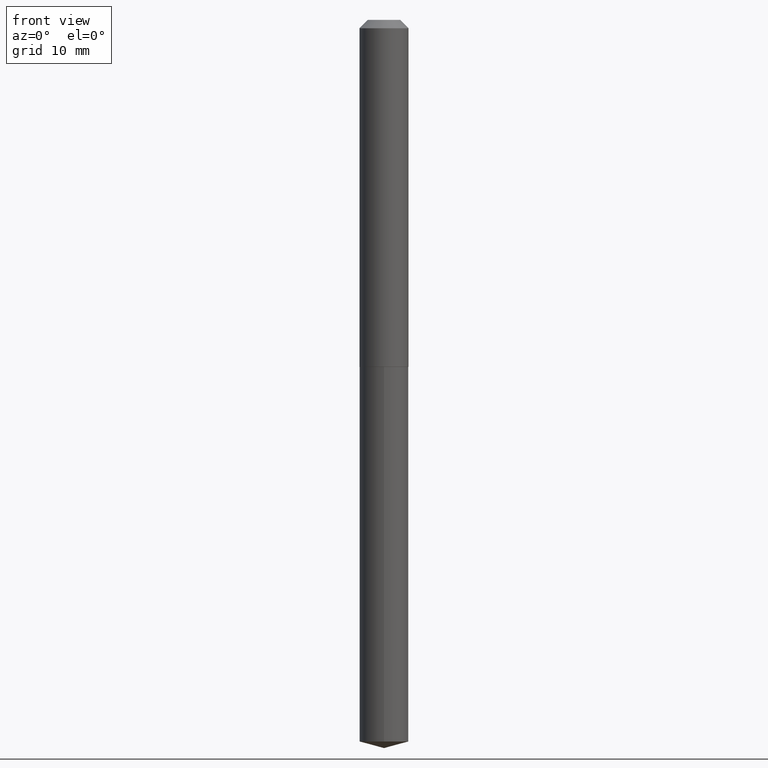
[diagram: clean part render]
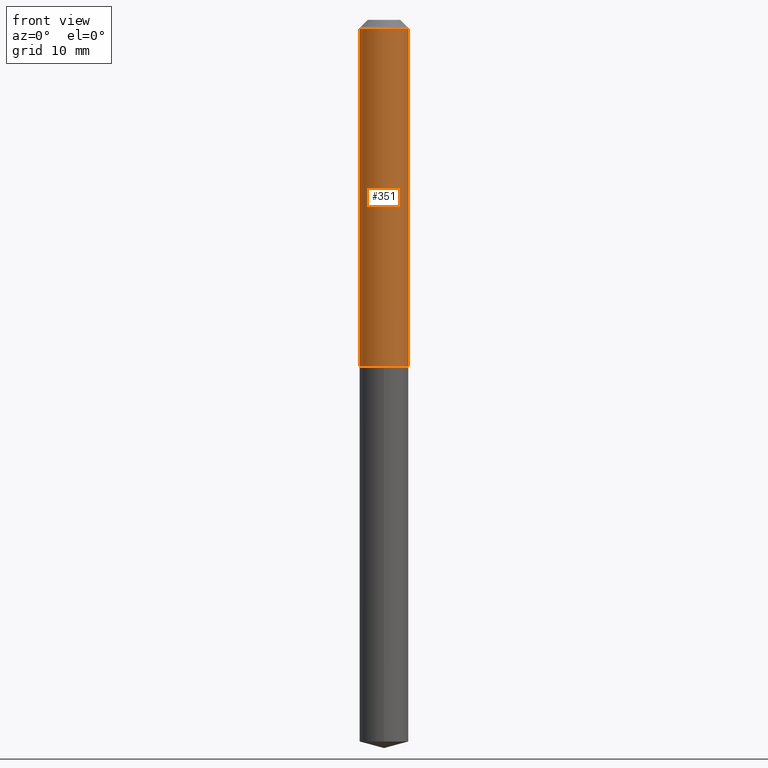
[diagram: same view with one face highlighted and labeled with its STEP entity id]
A machine part, front view. The second image highlights one B-rep face of the part: STEP entity #351.
In plain terms, the highlighted cylindrical surface (edge-blend (fillet) strip) has radius 2.3495 mm, axis along (-0, 0, 1).
Its self-contained STEP definition (entity closure, byte-faithful):
#15 = CARTESIAN_POINT ( 'NONE',  ( 0.09249999999999999889, -7.550328395248286925E-16, -0.03125000000000019429 ) ) ;
#30 = CARTESIAN_POINT ( 'NONE',  ( 0.000000000000000000, 0.000000000000000000, 0.000000000000000000 ) ) ;
#34 = DIRECTION ( 'NONE',  ( -2.445468806185136597E-29, 3.491481338843145583E-15, 1.000000000000000000 ) ) ;
#64 = LINE ( 'NONE', #93, #185 ) ;
#72 = CARTESIAN_POINT ( 'NONE',  ( 0.09250000000000017930, -5.218018860901080849E-15, -1.309500000000000108 ) ) ;
#73 = CARTESIAN_POINT ( 'NONE',  ( 0.09250000000000008216, -6.459240476859802821E-16, 4.510463517611244952E-30 ) ) ;
#80 = DIRECTION ( 'NONE',  ( -2.445468806185136597E-29, 3.491481338843145583E-15, 1.000000000000000000 ) ) ;
#90 = CYLINDRICAL_SURFACE ( 'NONE', #332, 0.09250000000000008216 ) ;
#91 = VECTOR ( 'NONE', #208, 39.37007874015748143 ) ;
#93 = CARTESIAN_POINT ( 'NONE',  ( -0.09250000000000008216, 6.572520305780932557E-16, -4.550014958485792374E-30 ) ) ;
#102 = CARTESIAN_POINT ( 'NONE',  ( 7.642090019328598283E-31, -1.091087918388489651E-16, -0.03125000000000019429 ) ) ;
#110 = CIRCLE ( 'NONE', #373, 0.09250000000000017930 ) ;
#136 = DIRECTION ( 'NONE',  ( 1.000000000000000000, -6.982962677686272233E-15, 0.000000000000000000 ) ) ;
#143 = CARTESIAN_POINT ( 'NONE',  ( -0.09250000000000017930, -3.914842782637005634E-15, -1.309500000000000108 ) ) ;
#146 = ORIENTED_EDGE ( 'NONE', *, *, #345, .F. ) ;
#149 = ORIENTED_EDGE ( 'NONE', *, *, #181, .T. ) ;
#181 = EDGE_CURVE ( 'NONE', #273, #384, #110, .T. ) ;
#185 = VECTOR ( 'NONE', #386, 39.37007874015748143 ) ;
#193 = DIRECTION ( 'NONE',  ( 1.000000000000000000, -6.982962677686267499E-15, 4.876176775795936353E-29 ) ) ;
#200 = EDGE_CURVE ( 'NONE', #363, #209, #235, .T. ) ;
#205 = CARTESIAN_POINT ( 'NONE',  ( 3.202341401699436656E-29, -4.572094813215099285E-15, -1.309500000000000108 ) ) ;
#208 = DIRECTION ( 'NONE',  ( -2.445468806185136877E-29, 3.491481338843145188E-15, 1.000000000000000000 ) ) ;
#209 = VERTEX_POINT ( 'NONE', #15 ) ;
#215 = EDGE_CURVE ( 'NONE', #384, #209, #350, .T. ) ;
#235 = CIRCLE ( 'NONE', #358, 0.09249999999999999889 ) ;
#254 = DIRECTION ( 'NONE',  ( 1.000000000000000000, -6.982962677686266711E-15, 0.000000000000000000 ) ) ;
#265 = ORIENTED_EDGE ( 'NONE', *, *, #215, .T. ) ;
#273 = VERTEX_POINT ( 'NONE', #143 ) ;
#307 = CARTESIAN_POINT ( 'NONE',  ( -0.09249999999999999889, -1.683349771948880148E-15, -0.03125000000000019429 ) ) ;
#308 = ORIENTED_EDGE ( 'NONE', *, *, #200, .F. ) ;
#321 = DIRECTION ( 'NONE',  ( -2.445468806185136597E-29, 3.491481338843145583E-15, 1.000000000000000000 ) ) ;
#332 = AXIS2_PLACEMENT_3D ( 'NONE', #30, #34, #193 ) ;
#338 = FACE_OUTER_BOUND ( 'NONE', #368, .T. ) ;
#345 = EDGE_CURVE ( 'NONE', #273, #363, #64, .T. ) ;
#350 = LINE ( 'NONE', #73, #91 ) ;
#351 = ADVANCED_FACE ( 'NONE', ( #338 ), #90, .T. ) ;
#358 = AXIS2_PLACEMENT_3D ( 'NONE', #102, #321, #254 ) ;
#363 = VERTEX_POINT ( 'NONE', #307 ) ;
#368 = EDGE_LOOP ( 'NONE', ( #146, #149, #265, #308 ) ) ;
#373 = AXIS2_PLACEMENT_3D ( 'NONE', #205, #80, #136 ) ;
#384 = VERTEX_POINT ( 'NONE', #72 ) ;
#386 = DIRECTION ( 'NONE',  ( -2.445468806185136877E-29, 3.491481338843145188E-15, 1.000000000000000000 ) ) ;